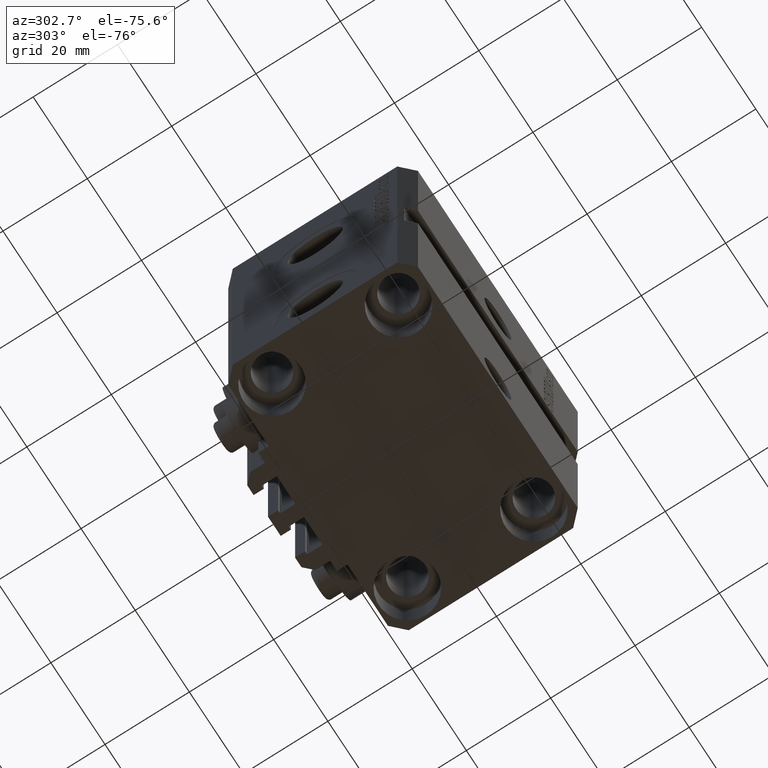
[diagram: clean part render]
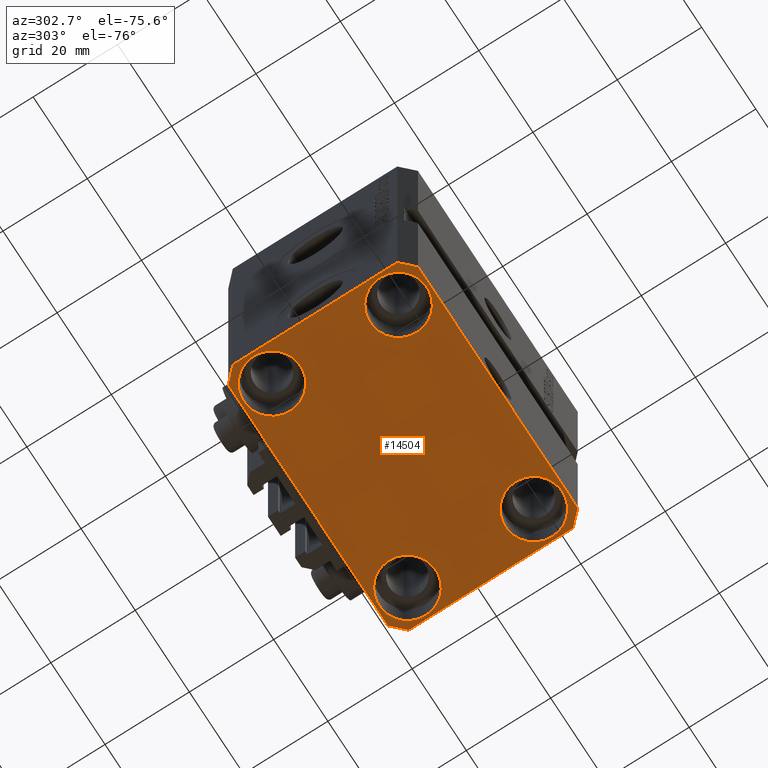
[diagram: same view with one face highlighted and labeled with its STEP entity id]
A machine part, auxiliary view. The second image highlights one B-rep face of the part: STEP entity #14504.
In plain terms, the highlighted planar face has unit normal (0, 0, 1).
Its self-contained STEP definition (entity closure, byte-faithful):
#106 = CARTESIAN_POINT ( 'NONE',  ( -32.49999999999650413, -19.49999999999949907, -77.00000000000000000 ) ) ;
#225 = CARTESIAN_POINT ( 'NONE',  ( 29.49999999999707967, 22.49999999999951328, -77.00000000000000000 ) ) ;
#563 = EDGE_LOOP ( 'NONE', ( #12094, #7803 ) ) ;
#881 = CIRCLE ( 'NONE', #28423, 6.749999999977465137 ) ;
#968 = FACE_OUTER_BOUND ( 'NONE', #1793, .T. ) ;
#1433 = CARTESIAN_POINT ( 'NONE',  ( 29.49999999999650413, -22.49999999999949196, -77.00000000000000000 ) ) ;
#1460 = CARTESIAN_POINT ( 'NONE',  ( -25.00000000000000355, 15.00000000000000000, -77.00000000000000000 ) ) ;
#1546 = CARTESIAN_POINT ( 'NONE',  ( 24.99999999999999645, 15.00000000000000888, -77.00000000000000000 ) ) ;
#1793 = EDGE_LOOP ( 'NONE', ( #26278, #38257, #35497, #19157, #26679, #26870, #46672, #38124 ) ) ;
#2087 = DIRECTION ( 'NONE',  ( 1.000000000000000000, 0.000000000000000000, 0.000000000000000000 ) ) ;
#2183 = VERTEX_POINT ( 'NONE', #42538 ) ;
#2232 = DIRECTION ( 'NONE',  ( 1.000000000000000000, 0.000000000000000000, 0.000000000000000000 ) ) ;
#2835 = CARTESIAN_POINT ( 'NONE',  ( -25.00000000000000355, 15.00000000000000000, -77.00000000000000000 ) ) ;
#3020 = VERTEX_POINT ( 'NONE', #32282 ) ;
#3611 = CARTESIAN_POINT ( 'NONE',  ( 18.25000000002253842, -15.00000000000000000, -77.00000000000000000 ) ) ;
#4620 = LINE ( 'NONE', #27522, #16795 ) ;
#4759 = DIRECTION ( 'NONE',  ( 1.000000000000000000, 0.000000000000000000, 0.000000000000000000 ) ) ;
#4882 = CARTESIAN_POINT ( 'NONE',  ( -31.75000000004154899, -15.00000000000000000, -77.00000000000000000 ) ) ;
#4908 = CARTESIAN_POINT ( 'NONE',  ( 24.99999999999999645, 15.00000000000000888, -77.00000000000000000 ) ) ;
#5091 = EDGE_CURVE ( 'NONE', #23792, #14811, #28735, .T. ) ;
#5178 = ORIENTED_EDGE ( 'NONE', *, *, #36476, .T. ) ;
#5406 = DIRECTION ( 'NONE',  ( 0.000000000000000000, 0.000000000000000000, 1.000000000000000000 ) ) ;
#5777 = CIRCLE ( 'NONE', #19151, 6.750000000041541881 ) ;
#5922 = AXIS2_PLACEMENT_3D ( 'NONE', #2835, #36359, #6304 ) ;
#6304 = DIRECTION ( 'NONE',  ( 1.000000000000000000, 0.000000000000000000, 0.000000000000000000 ) ) ;
#7803 = ORIENTED_EDGE ( 'NONE', *, *, #15178, .T. ) ;
#7939 = VERTEX_POINT ( 'NONE', #1433 ) ;
#8386 = LINE ( 'NONE', #15800, #22496 ) ;
#8602 = FACE_BOUND ( 'NONE', #563, .T. ) ;
#9273 = EDGE_CURVE ( 'NONE', #29733, #37229, #21279, .T. ) ;
#9701 = DIRECTION ( 'NONE',  ( 1.000000000000000000, 0.000000000000000000, 0.000000000000000000 ) ) ;
#11568 = AXIS2_PLACEMENT_3D ( 'NONE', #4908, #19940, #42842 ) ;
#12094 = ORIENTED_EDGE ( 'NONE', *, *, #31992, .T. ) ;
#13158 = CARTESIAN_POINT ( 'NONE',  ( -25.00000000000000355, -15.00000000000000000, -77.00000000000000000 ) ) ;
#13897 = AXIS2_PLACEMENT_3D ( 'NONE', #1460, #34479, #19935 ) ;
#14216 = CARTESIAN_POINT ( 'NONE',  ( 32.49999999999702993, 19.49999999999945999, -77.00000000000000000 ) ) ;
#14296 = ORIENTED_EDGE ( 'NONE', *, *, #37553, .T. ) ;
#14473 = VERTEX_POINT ( 'NONE', #27334 ) ;
#14504 = ADVANCED_FACE ( 'NONE', ( #8602, #39152, #42365, #31023, #968 ), #23631, .F. ) ;
#14811 = VERTEX_POINT ( 'NONE', #18672 ) ;
#14896 = EDGE_CURVE ( 'NONE', #7939, #29733, #4620, .T. ) ;
#15021 = VERTEX_POINT ( 'NONE', #106 ) ;
#15178 = EDGE_CURVE ( 'NONE', #34292, #36974, #5777, .T. ) ;
#15243 = CIRCLE ( 'NONE', #16834, 6.749999999977465137 ) ;
#15773 = DIRECTION ( 'NONE',  ( -1.000000000000000000, -2.352167425053553784E-16, 0.000000000000000000 ) ) ;
#15800 = CARTESIAN_POINT ( 'NONE',  ( -32.49999999999650413, 19.49999999999949907, -77.00000000000000000 ) ) ;
#15809 = AXIS2_PLACEMENT_3D ( 'NONE', #1546, #27427, #4759 ) ;
#15854 = EDGE_LOOP ( 'NONE', ( #39106, #36732 ) ) ;
#16795 = VECTOR ( 'NONE', #38848, 1000.000000000000000 ) ;
#16834 = AXIS2_PLACEMENT_3D ( 'NONE', #35835, #28213, #2087 ) ;
#17123 = CARTESIAN_POINT ( 'NONE',  ( -25.00000000000000355, -15.00000000000000000, -77.00000000000000000 ) ) ;
#17353 = DIRECTION ( 'NONE',  ( 1.000000000000000000, 0.000000000000000000, 0.000000000000000000 ) ) ;
#17500 = DIRECTION ( 'NONE',  ( -0.7071067811865474617, -0.7071067811865474617, 0.000000000000000000 ) ) ;
#17521 = VERTEX_POINT ( 'NONE', #3611 ) ;
#18509 = EDGE_CURVE ( 'NONE', #14811, #23792, #35005, .T. ) ;
#18672 = CARTESIAN_POINT ( 'NONE',  ( -18.24999999997747224, 15.00000000000000000, -77.00000000000000000 ) ) ;
#19151 = AXIS2_PLACEMENT_3D ( 'NONE', #13158, #43692, #17353 ) ;
#19157 = ORIENTED_EDGE ( 'NONE', *, *, #14896, .F. ) ;
#19935 = DIRECTION ( 'NONE',  ( 1.000000000000000000, 0.000000000000000000, 0.000000000000000000 ) ) ;
#19940 = DIRECTION ( 'NONE',  ( -0.000000000000000000, -0.000000000000000000, 1.000000000000000000 ) ) ;
#21203 = DIRECTION ( 'NONE',  ( -0.000000000000000000, -0.000000000000000000, 1.000000000000000000 ) ) ;
#21279 = LINE ( 'NONE', #36536, #39892 ) ;
#22207 = DIRECTION ( 'NONE',  ( 1.000000000000000000, 1.176083712526788232E-16, 0.000000000000000000 ) ) ;
#22496 = VECTOR ( 'NONE', #23420, 1000.000000000000000 ) ;
#23420 = DIRECTION ( 'NONE',  ( 0.000000000000000000, -1.000000000000000000, 0.000000000000000000 ) ) ;
#23427 = EDGE_CURVE ( 'NONE', #14473, #30006, #33590, .T. ) ;
#23631 = PLANE ( 'NONE',  #28585 ) ;
#23792 = VERTEX_POINT ( 'NONE', #42178 ) ;
#26278 = ORIENTED_EDGE ( 'NONE', *, *, #30479, .F. ) ;
#26630 = VERTEX_POINT ( 'NONE', #34912 ) ;
#26679 = ORIENTED_EDGE ( 'NONE', *, *, #40837, .F. ) ;
#26870 = ORIENTED_EDGE ( 'NONE', *, *, #44643, .F. ) ;
#27334 = CARTESIAN_POINT ( 'NONE',  ( 18.25000000004154543, 15.00000000000000888, -77.00000000000000000 ) ) ;
#27427 = DIRECTION ( 'NONE',  ( -0.000000000000000000, -0.000000000000000000, 1.000000000000000000 ) ) ;
#27522 = CARTESIAN_POINT ( 'NONE',  ( 29.49999999999650413, -22.49999999999949196, -77.00000000000000000 ) ) ;
#28213 = DIRECTION ( 'NONE',  ( -0.000000000000000000, -0.000000000000000000, 1.000000000000000000 ) ) ;
#28423 = AXIS2_PLACEMENT_3D ( 'NONE', #36708, #21203, #2232 ) ;
#28585 = AXIS2_PLACEMENT_3D ( 'NONE', #38425, #5406, #45800 ) ;
#28735 = CIRCLE ( 'NONE', #13897, 6.750000000022533087 ) ;
#28817 = VECTOR ( 'NONE', #17500, 1000.000000000000114 ) ;
#28994 = VECTOR ( 'NONE', #15773, 1000.000000000000000 ) ;
#29605 = LINE ( 'NONE', #33285, #40594 ) ;
#29623 = DIRECTION ( 'NONE',  ( 1.334402673828349134E-14, 1.000000000000000000, 0.000000000000000000 ) ) ;
#29733 = VERTEX_POINT ( 'NONE', #46809 ) ;
#30006 = VERTEX_POINT ( 'NONE', #38881 ) ;
#30479 = EDGE_CURVE ( 'NONE', #26630, #3020, #38428, .T. ) ;
#30588 = CARTESIAN_POINT ( 'NONE',  ( 32.49999999999702993, 19.49999999999945999, -77.00000000000000000 ) ) ;
#31023 = FACE_BOUND ( 'NONE', #15854, .T. ) ;
#31992 = EDGE_CURVE ( 'NONE', #36974, #34292, #46357, .T. ) ;
#32282 = CARTESIAN_POINT ( 'NONE',  ( -29.49999999999650413, 22.49999999999949907, -77.00000000000000000 ) ) ;
#32587 = VERTEX_POINT ( 'NONE', #43295 ) ;
#33285 = CARTESIAN_POINT ( 'NONE',  ( -29.49999999999650413, -22.49999999999949907, -77.00000000000000000 ) ) ;
#33590 = CIRCLE ( 'NONE', #11568, 6.749999999958452790 ) ;
#33946 = ORIENTED_EDGE ( 'NONE', *, *, #39699, .T. ) ;
#34270 = LINE ( 'NONE', #30588, #36656 ) ;
#34292 = VERTEX_POINT ( 'NONE', #40811 ) ;
#34319 = CARTESIAN_POINT ( 'NONE',  ( -29.49999999999650413, -22.49999999999949907, -77.00000000000000000 ) ) ;
#34479 = DIRECTION ( 'NONE',  ( -0.000000000000000000, -0.000000000000000000, 1.000000000000000000 ) ) ;
#34912 = CARTESIAN_POINT ( 'NONE',  ( 29.49999999999707967, 22.49999999999951328, -77.00000000000000000 ) ) ;
#35005 = CIRCLE ( 'NONE', #5922, 6.750000000022533087 ) ;
#35497 = ORIENTED_EDGE ( 'NONE', *, *, #9273, .F. ) ;
#35719 = LINE ( 'NONE', #40879, #28817 ) ;
#35835 = CARTESIAN_POINT ( 'NONE',  ( 25.00000000000000355, -15.00000000000000000, -77.00000000000000000 ) ) ;
#36134 = AXIS2_PLACEMENT_3D ( 'NONE', #17123, #47162, #9701 ) ;
#36341 = VERTEX_POINT ( 'NONE', #34319 ) ;
#36359 = DIRECTION ( 'NONE',  ( -0.000000000000000000, -0.000000000000000000, 1.000000000000000000 ) ) ;
#36476 = EDGE_CURVE ( 'NONE', #30006, #14473, #39399, .T. ) ;
#36536 = CARTESIAN_POINT ( 'NONE',  ( 32.49999999999651124, -19.49999999999949196, -77.00000000000000000 ) ) ;
#36656 = VECTOR ( 'NONE', #38465, 1000.000000000000000 ) ;
#36708 = CARTESIAN_POINT ( 'NONE',  ( 25.00000000000000355, -15.00000000000000000, -77.00000000000000000 ) ) ;
#36732 = ORIENTED_EDGE ( 'NONE', *, *, #18509, .T. ) ;
#36974 = VERTEX_POINT ( 'NONE', #4882 ) ;
#37229 = VERTEX_POINT ( 'NONE', #14216 ) ;
#37553 = EDGE_CURVE ( 'NONE', #32587, #17521, #881, .T. ) ;
#38124 = ORIENTED_EDGE ( 'NONE', *, *, #45423, .F. ) ;
#38257 = ORIENTED_EDGE ( 'NONE', *, *, #41021, .F. ) ;
#38425 = CARTESIAN_POINT ( 'NONE',  ( 0.000000000000000000, 0.000000000000000000, -77.00000000000000000 ) ) ;
#38428 = LINE ( 'NONE', #225, #28994 ) ;
#38465 = DIRECTION ( 'NONE',  ( -0.7071067811865352493, 0.7071067811865597852, 0.000000000000000000 ) ) ;
#38848 = DIRECTION ( 'NONE',  ( 0.7071067811865483499, 0.7071067811865466846, 0.000000000000000000 ) ) ;
#38881 = CARTESIAN_POINT ( 'NONE',  ( 31.74999999995845101, 15.00000000000000888, -77.00000000000000000 ) ) ;
#39106 = ORIENTED_EDGE ( 'NONE', *, *, #5091, .T. ) ;
#39131 = ORIENTED_EDGE ( 'NONE', *, *, #23427, .T. ) ;
#39152 = FACE_BOUND ( 'NONE', #40803, .T. ) ;
#39399 = CIRCLE ( 'NONE', #15809, 6.749999999958452790 ) ;
#39699 = EDGE_CURVE ( 'NONE', #17521, #32587, #15243, .T. ) ;
#39892 = VECTOR ( 'NONE', #29623, 1000.000000000000000 ) ;
#40594 = VECTOR ( 'NONE', #22207, 1000.000000000000000 ) ;
#40803 = EDGE_LOOP ( 'NONE', ( #33946, #14296 ) ) ;
#40811 = CARTESIAN_POINT ( 'NONE',  ( -18.24999999995845812, -15.00000000000000000, -77.00000000000000000 ) ) ;
#40837 = EDGE_CURVE ( 'NONE', #36341, #7939, #29605, .T. ) ;
#40879 = CARTESIAN_POINT ( 'NONE',  ( -29.49999999999650413, 22.49999999999949907, -77.00000000000000000 ) ) ;
#41021 = EDGE_CURVE ( 'NONE', #37229, #26630, #34270, .T. ) ;
#41207 = EDGE_LOOP ( 'NONE', ( #39131, #5178 ) ) ;
#42125 = VECTOR ( 'NONE', #42861, 1000.000000000000114 ) ;
#42178 = CARTESIAN_POINT ( 'NONE',  ( -31.75000000002253842, 15.00000000000000000, -77.00000000000000000 ) ) ;
#42365 = FACE_BOUND ( 'NONE', #41207, .T. ) ;
#42538 = CARTESIAN_POINT ( 'NONE',  ( -32.49999999999650413, 19.49999999999949907, -77.00000000000000000 ) ) ;
#42842 = DIRECTION ( 'NONE',  ( 1.000000000000000000, 0.000000000000000000, 0.000000000000000000 ) ) ;
#42861 = DIRECTION ( 'NONE',  ( 0.7071067811865474617, -0.7071067811865474617, 0.000000000000000000 ) ) ;
#43295 = CARTESIAN_POINT ( 'NONE',  ( 31.74999999997746869, -15.00000000000000000, -77.00000000000000000 ) ) ;
#43692 = DIRECTION ( 'NONE',  ( -0.000000000000000000, -0.000000000000000000, 1.000000000000000000 ) ) ;
#44643 = EDGE_CURVE ( 'NONE', #15021, #36341, #46559, .T. ) ;
#45308 = EDGE_CURVE ( 'NONE', #2183, #15021, #8386, .T. ) ;
#45423 = EDGE_CURVE ( 'NONE', #3020, #2183, #35719, .T. ) ;
#45800 = DIRECTION ( 'NONE',  ( 1.000000000000000000, 0.000000000000000000, -0.000000000000000000 ) ) ;
#46064 = CARTESIAN_POINT ( 'NONE',  ( -32.49999999999650413, -19.49999999999949907, -77.00000000000000000 ) ) ;
#46357 = CIRCLE ( 'NONE', #36134, 6.750000000041541881 ) ;
#46559 = LINE ( 'NONE', #46064, #42125 ) ;
#46672 = ORIENTED_EDGE ( 'NONE', *, *, #45308, .F. ) ;
#46809 = CARTESIAN_POINT ( 'NONE',  ( 32.49999999999651124, -19.49999999999949196, -77.00000000000000000 ) ) ;
#47162 = DIRECTION ( 'NONE',  ( -0.000000000000000000, -0.000000000000000000, 1.000000000000000000 ) ) ;